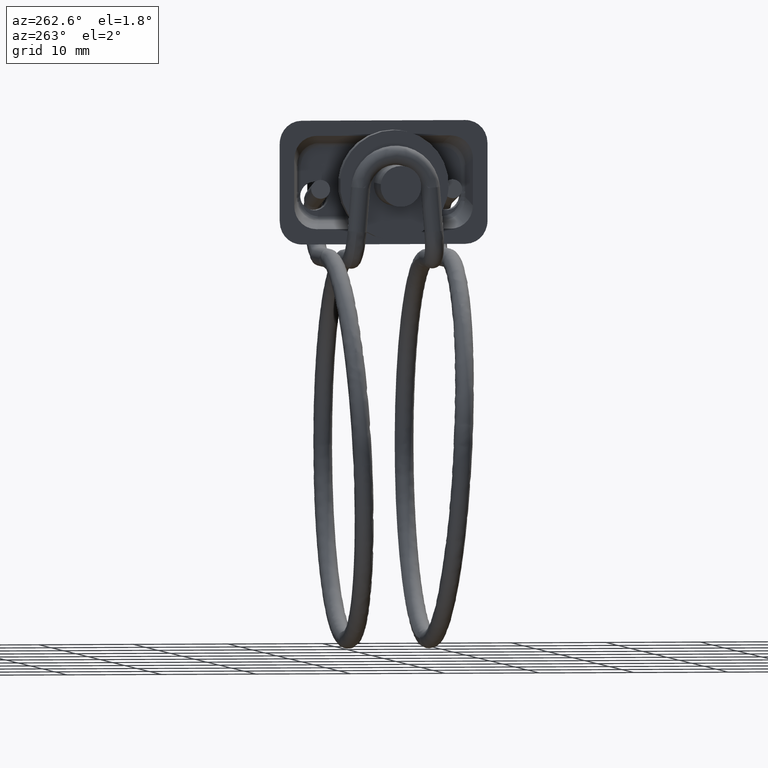
[diagram: clean part render]
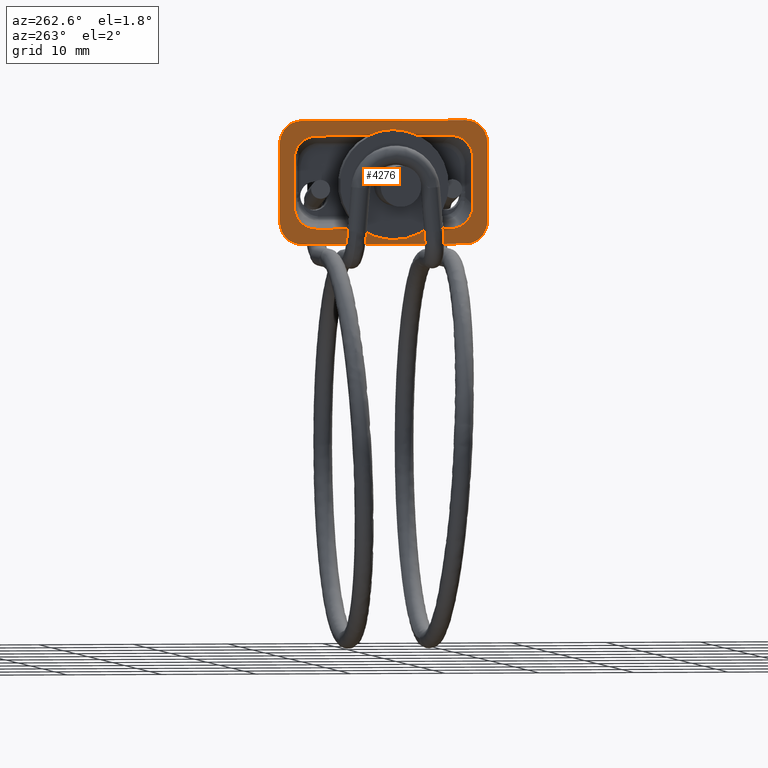
[diagram: same view with one face highlighted and labeled with its STEP entity id]
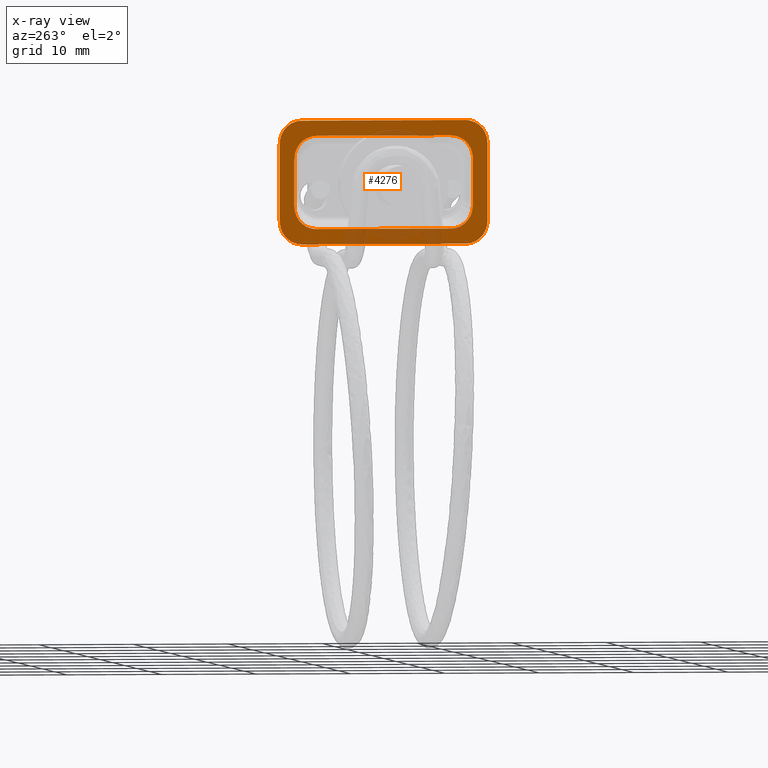
[diagram: x-ray of the same camera — body ghosted, the highlighted face saturated]
A machine part, auxiliary view. The second image highlights one B-rep face of the part: STEP entity #4276.
The next image is the same camera in x-ray: the body ghosted, the highlighted face saturated — about 13% of this face is hidden behind the body in this view.
In plain terms, the highlighted face is a freeform B-spline surface patch.
Its self-contained STEP definition (entity closure, byte-faithful):
#3769=CARTESIAN_POINT('',(-38.700000000000003,-9.453835362344231,-2.455375465696455));
#3770=VERTEX_POINT('',#3769);
#3778=CARTESIAN_POINT('',(-38.700000000000003,-7.096346438622450,-4.897999379502131));
#3779=VERTEX_POINT('',#3778);
#3785=CARTESIAN_POINT('',(-38.700000000000003,-9.453835362344169,-2.455375465696495));
#3786=CARTESIAN_POINT('',(-38.699999999999996,-9.453835362344108,-4.897999379502226));
#3787=CARTESIAN_POINT('',(-38.700000000000003,-7.096346438622450,-4.897999379502131));
#3795=(BOUNDED_CURVE()B_SPLINE_CURVE(2,(#3785,#3786,#3787),.UNSPECIFIED.,.F.,.U.)CURVE()GEOMETRIC_REPRESENTATION_ITEM()QUASI_UNIFORM_CURVE()RATIONAL_B_SPLINE_CURVE((1.0,0.736600277350803,1.0))REPRESENTATION_ITEM(''));
#3796=EDGE_CURVE('',#3770,#3779,#3795,.T.);
#3815=CARTESIAN_POINT('',(-38.700000000000003,7.096346438622000,-4.897999379502131));
#3816=VERTEX_POINT('',#3815);
#3824=CARTESIAN_POINT('',(-38.700000000000003,9.453835362344339,-2.455375465696360));
#3825=VERTEX_POINT('',#3824);
#3831=CARTESIAN_POINT('',(-38.700000000000003,7.096346438622005,-4.897999379502140));
#3832=CARTESIAN_POINT('',(-38.699999999999989,9.453835362344405,-4.897999379502303));
#3833=CARTESIAN_POINT('',(-38.700000000000003,9.453835362344339,-2.455375465696360));
#3841=(BOUNDED_CURVE()B_SPLINE_CURVE(2,(#3831,#3832,#3833),.UNSPECIFIED.,.F.,.U.)CURVE()GEOMETRIC_REPRESENTATION_ITEM()QUASI_UNIFORM_CURVE()RATIONAL_B_SPLINE_CURVE((1.0,0.736600277350721,1.0))REPRESENTATION_ITEM(''));
#3842=EDGE_CURVE('',#3816,#3825,#3841,.T.);
#3861=CARTESIAN_POINT('',(-38.700000000000003,9.453835362344339,2.455374465696385));
#3862=VERTEX_POINT('',#3861);
#3869=CARTESIAN_POINT('',(-38.700000000000003,7.096346438622230,4.897998379502161));
#3870=VERTEX_POINT('',#3869);
#3876=CARTESIAN_POINT('',(-38.700000000000003,9.453835362344339,2.455374465696385));
#3877=CARTESIAN_POINT('',(-38.699999999999989,9.453835362344014,4.897998379502210));
#3878=CARTESIAN_POINT('',(-38.700000000000003,7.096346438622204,4.897998379502179));
#3886=(BOUNDED_CURVE()B_SPLINE_CURVE(2,(#3876,#3877,#3878),.UNSPECIFIED.,.F.,.U.)CURVE()GEOMETRIC_REPRESENTATION_ITEM()QUASI_UNIFORM_CURVE()RATIONAL_B_SPLINE_CURVE((1.0,0.736600277350804,1.0))REPRESENTATION_ITEM(''));
#3887=EDGE_CURVE('',#3862,#3870,#3886,.T.);
#3906=CARTESIAN_POINT('',(-38.700000000000003,-7.096346438622230,4.897998379502161));
#3907=VERTEX_POINT('',#3906);
#3914=CARTESIAN_POINT('',(-38.700000000000003,-9.453835362344231,2.455374465696380));
#3915=VERTEX_POINT('',#3914);
#3921=CARTESIAN_POINT('',(-38.700000000000003,-7.096346438622241,4.897998379502179));
#3922=CARTESIAN_POINT('',(-38.700000000000003,-9.453835362344249,4.897998379502205));
#3923=CARTESIAN_POINT('',(-38.700000000000003,-9.453835362344169,2.455374465696290));
#3931=(BOUNDED_CURVE()B_SPLINE_CURVE(2,(#3921,#3922,#3923),.UNSPECIFIED.,.F.,.U.)CURVE()GEOMETRIC_REPRESENTATION_ITEM()QUASI_UNIFORM_CURVE()RATIONAL_B_SPLINE_CURVE((1.0,0.736600277350776,1.0))REPRESENTATION_ITEM(''));
#3932=EDGE_CURVE('',#3907,#3915,#3931,.T.);
#3951=CARTESIAN_POINT('',(-38.700000000000003,-11.0,4.057375086194185));
#3952=VERTEX_POINT('',#3951);
#3959=CARTESIAN_POINT('',(-38.700000000000003,-8.642511158470031,6.500000000000110));
#3960=VERTEX_POINT('',#3959);
#3966=CARTESIAN_POINT('',(-38.700000000000003,-11.0,4.057375086194185));
#3967=CARTESIAN_POINT('',(-38.700000000000003,-10.999999223404537,6.499998007051939));
#3968=CARTESIAN_POINT('',(-38.700000000000003,-8.642511158470031,6.500000000000110));
#3976=(BOUNDED_CURVE()B_SPLINE_CURVE(2,(#3966,#3967,#3968),.UNSPECIFIED.,.F.,.U.)CURVE()GEOMETRIC_REPRESENTATION_ITEM()QUASI_UNIFORM_CURVE()RATIONAL_B_SPLINE_CURVE((1.0,0.736600485733960,1.0))REPRESENTATION_ITEM(''));
#3977=EDGE_CURVE('',#3952,#3960,#3976,.T.);
#3996=CARTESIAN_POINT('',(-38.700000000000003,-8.642511076278339,-6.500000000000000));
#3997=VERTEX_POINT('',#3996);
#4004=CARTESIAN_POINT('',(-38.700000000000003,-11.0,-4.057376086194156));
#4005=VERTEX_POINT('',#4004);
#4011=CARTESIAN_POINT('',(-38.700000000000003,-8.642511076278327,-6.499999999999980));
#4012=CARTESIAN_POINT('',(-38.699999999999996,-10.999999999999945,-6.499999999999979));
#4013=CARTESIAN_POINT('',(-38.700000000000003,-11.0,-4.057376086194156));
#4021=(BOUNDED_CURVE()B_SPLINE_CURVE(2,(#4011,#4012,#4013),.UNSPECIFIED.,.F.,.U.)CURVE()GEOMETRIC_REPRESENTATION_ITEM()QUASI_UNIFORM_CURVE()RATIONAL_B_SPLINE_CURVE((1.0,0.736600277350831,1.0))REPRESENTATION_ITEM(''));
#4022=EDGE_CURVE('',#3997,#4005,#4021,.T.);
#4041=CARTESIAN_POINT('',(-38.700000000000003,11.000000000000121,-4.057376086194106));
#4042=VERTEX_POINT('',#4041);
#4049=CARTESIAN_POINT('',(-38.700000000000003,8.642511076278229,-6.500000000000000));
#4050=VERTEX_POINT('',#4049);
#4056=CARTESIAN_POINT('',(-38.700000000000003,11.000000000000121,-4.057376086194105));
#4057=CARTESIAN_POINT('',(-38.699999999999996,11.000000000000103,-6.499999999999749));
#4058=CARTESIAN_POINT('',(-38.700000000000003,8.642511076278229,-6.500000000000000));
#4066=(BOUNDED_CURVE()B_SPLINE_CURVE(2,(#4056,#4057,#4058),.UNSPECIFIED.,.F.,.U.)CURVE()GEOMETRIC_REPRESENTATION_ITEM()QUASI_UNIFORM_CURVE()RATIONAL_B_SPLINE_CURVE((1.0,0.736600277350816,1.0))REPRESENTATION_ITEM(''));
#4067=EDGE_CURVE('',#4042,#4050,#4066,.T.);
#4086=CARTESIAN_POINT('',(-38.700000000000003,8.642511158470031,6.500000000000110));
#4087=VERTEX_POINT('',#4086);
#4094=CARTESIAN_POINT('',(-38.700000000000003,11.000000000000121,4.057375086194250));
#4095=VERTEX_POINT('',#4094);
#4101=CARTESIAN_POINT('',(-38.700000000000003,8.642511158470031,6.500000000000110));
#4102=CARTESIAN_POINT('',(-38.699999999999996,11.000000345154032,6.500000075788750));
#4103=CARTESIAN_POINT('',(-38.700000000000003,11.000000000000121,4.057375086194250));
#4111=(BOUNDED_CURVE()B_SPLINE_CURVE(2,(#4101,#4102,#4103),.UNSPECIFIED.,.F.,.U.)CURVE()GEOMETRIC_REPRESENTATION_ITEM()QUASI_UNIFORM_CURVE()RATIONAL_B_SPLINE_CURVE((1.0,0.736600200372209,1.0))REPRESENTATION_ITEM(''));
#4112=EDGE_CURVE('',#4087,#4095,#4111,.T.);
#4126=CARTESIAN_POINT('',(-38.700000000000003,9.453835362344339,-2.455375465696360));
#4127=CARTESIAN_POINT('',(-38.700000000000003,9.453835362344339,2.455374465696385));
#4128=QUASI_UNIFORM_CURVE('',1,(#4126,#4127),.UNSPECIFIED.,.F.,.U.);
#4129=EDGE_CURVE('',#3825,#3862,#4128,.T.);
#4143=CARTESIAN_POINT('',(-38.700000000000003,-9.453835362344231,-2.455375465696455));
#4144=CARTESIAN_POINT('',(-38.700000000000003,-9.453835362344231,2.455374465696380));
#4145=QUASI_UNIFORM_CURVE('',1,(#4143,#4144),.UNSPECIFIED.,.F.,.U.);
#4146=EDGE_CURVE('',#3770,#3915,#4145,.T.);
#4159=CARTESIAN_POINT('',(-38.700000000000003,-7.096346438622450,-4.897999379502131));
#4160=CARTESIAN_POINT('',(-38.700000000000003,7.096346438622000,-4.897999379502131));
#4161=QUASI_UNIFORM_CURVE('',1,(#4159,#4160),.UNSPECIFIED.,.F.,.U.);
#4162=EDGE_CURVE('',#3779,#3816,#4161,.T.);
#4203=CARTESIAN_POINT('',(-38.700000000000003,-7.096346438622230,4.897998379502161));
#4204=CARTESIAN_POINT('',(-38.700000000000003,7.096346438622230,4.897998379502161));
#4205=QUASI_UNIFORM_CURVE('',1,(#4203,#4204),.UNSPECIFIED.,.F.,.U.);
#4206=EDGE_CURVE('',#3907,#3870,#4205,.T.);
#4219=CARTESIAN_POINT('',(-38.700000000000003,11.000000000000121,-4.057376086194106));
#4220=CARTESIAN_POINT('',(-38.700000000000003,11.000000000000121,4.057375086194250));
#4221=QUASI_UNIFORM_CURVE('',1,(#4219,#4220),.UNSPECIFIED.,.F.,.U.);
#4222=EDGE_CURVE('',#4042,#4095,#4221,.T.);
#4235=CARTESIAN_POINT('',(-38.700000000000003,-11.0,-4.057376086194156));
#4236=CARTESIAN_POINT('',(-38.700000000000003,-11.0,4.057375086194185));
#4237=QUASI_UNIFORM_CURVE('',1,(#4235,#4236),.UNSPECIFIED.,.F.,.U.);
#4238=EDGE_CURVE('',#4005,#3952,#4237,.T.);
#4243=CARTESIAN_POINT('',(-38.700000000000003,-12.098899957359739,-7.149349974803484));
#4244=CARTESIAN_POINT('',(-38.700000000000003,-12.098899957359739,7.149350323490763));
#4245=CARTESIAN_POINT('',(-38.700000000000003,12.098900547445840,-7.149349974803484));
#4246=CARTESIAN_POINT('',(-38.700000000000003,12.098900547445840,7.149350323490763));
#4247=B_SPLINE_SURFACE_WITH_KNOTS('',1,1,((#4243,#4245),(#4244,#4246)),.UNSPECIFIED.,.F.,.F.,.U.,(2,2),(2,2),(0.0,14.298700298294250),(0.0,24.197800504805581),.UNSPECIFIED.);
#4248=CARTESIAN_POINT('',(-38.700000000000003,-8.642511158470031,6.500000000000110));
#4249=CARTESIAN_POINT('',(-38.700000000000003,8.642511158470031,6.500000000000110));
#4250=QUASI_UNIFORM_CURVE('',1,(#4248,#4249),.UNSPECIFIED.,.F.,.U.);
#4251=EDGE_CURVE('',#3960,#4087,#4250,.T.);
#4252=ORIENTED_EDGE('',*,*,#4251,.T.);
#4253=ORIENTED_EDGE('',*,*,#4112,.T.);
#4254=ORIENTED_EDGE('',*,*,#4222,.F.);
#4255=ORIENTED_EDGE('',*,*,#4067,.T.);
#4256=CARTESIAN_POINT('',(-38.700000000000003,-8.642511076278339,-6.500000000000000));
#4257=CARTESIAN_POINT('',(-38.700000000000003,8.642511076278229,-6.500000000000000));
#4258=QUASI_UNIFORM_CURVE('',1,(#4256,#4257),.UNSPECIFIED.,.F.,.U.);
#4259=EDGE_CURVE('',#3997,#4050,#4258,.T.);
#4260=ORIENTED_EDGE('',*,*,#4259,.F.);
#4261=ORIENTED_EDGE('',*,*,#4022,.T.);
#4262=ORIENTED_EDGE('',*,*,#4238,.T.);
#4263=ORIENTED_EDGE('',*,*,#3977,.T.);
#4264=EDGE_LOOP('',(#4252,#4253,#4254,#4255,#4260,#4261,#4262,#4263));
#4265=FACE_OUTER_BOUND('',#4264,.T.);
#4266=ORIENTED_EDGE('',*,*,#4146,.F.);
#4267=ORIENTED_EDGE('',*,*,#3796,.T.);
#4268=ORIENTED_EDGE('',*,*,#4162,.T.);
#4269=ORIENTED_EDGE('',*,*,#3842,.T.);
#4270=ORIENTED_EDGE('',*,*,#4129,.T.);
#4271=ORIENTED_EDGE('',*,*,#3887,.T.);
#4272=ORIENTED_EDGE('',*,*,#4206,.F.);
#4273=ORIENTED_EDGE('',*,*,#3932,.T.);
#4274=EDGE_LOOP('',(#4266,#4267,#4268,#4269,#4270,#4271,#4272,#4273));
#4275=FACE_BOUND('',#4274,.T.);
#4276=ADVANCED_FACE('',(#4265,#4275),#4247,.T.);